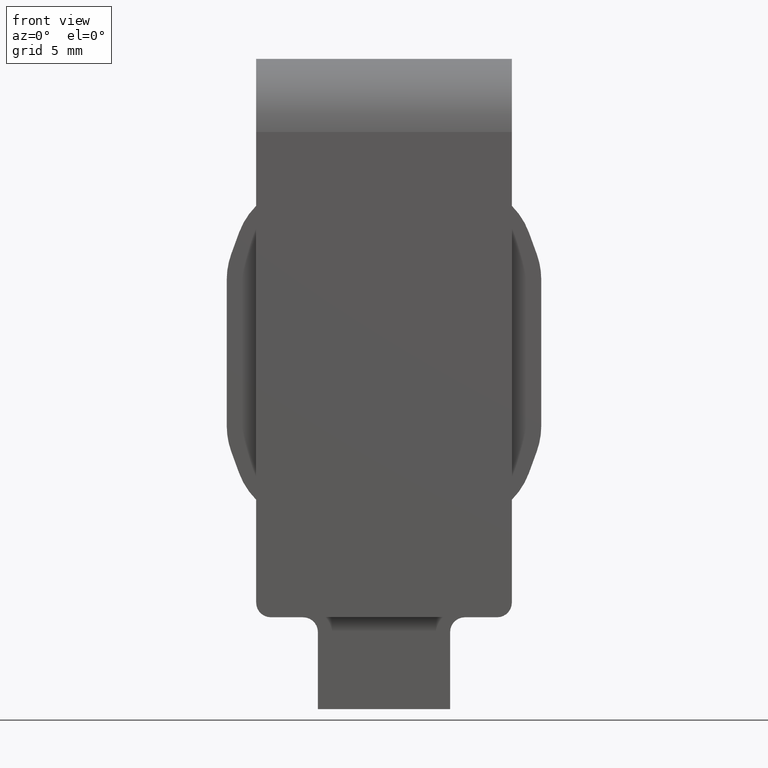
[diagram: clean part render]
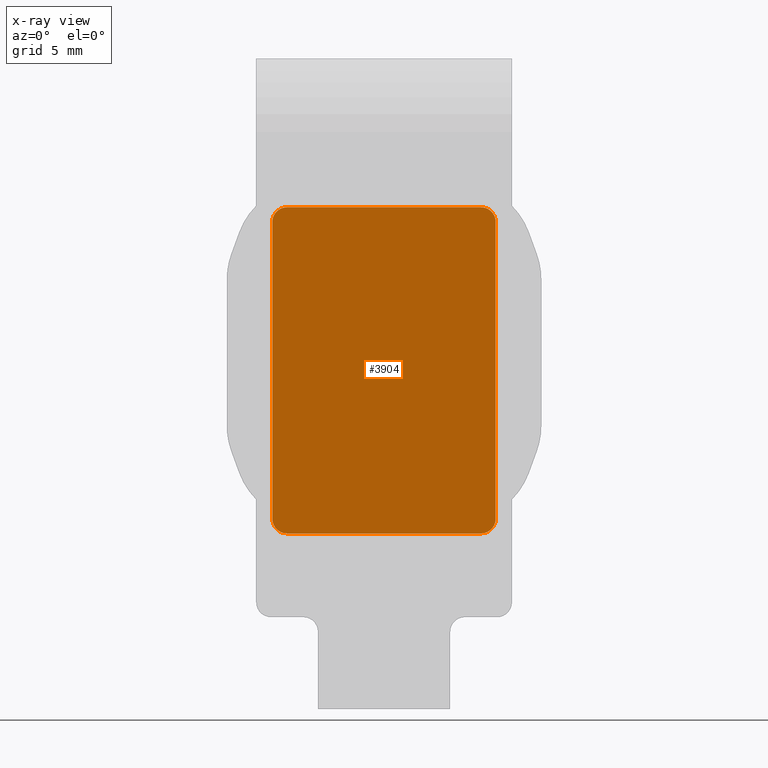
[diagram: x-ray — body ghosted, one internal face saturated and labeled with its STEP entity id]
A machine part, front view, then the same camera in x-ray: the body is ghosted and one INTERNAL B-rep face — a face not visible from any outside direction — is saturated and labeled: STEP entity #3904.
In plain terms, the highlighted planar face has unit normal (-0, -1, -0).
Its self-contained STEP definition (entity closure, byte-faithful):
#135 = LINE ( 'NONE', #9154, #2910 ) ;
#536 = EDGE_CURVE ( 'NONE', #4907, #2360, #135, .T. ) ;
#702 = CIRCLE ( 'NONE', #12498, 1.000000000000000888 ) ;
#859 = CIRCLE ( 'NONE', #11287, 1.000000000000000000 ) ;
#943 = CARTESIAN_POINT ( 'NONE',  ( -6.599999999999998757, 3.999999999999999112, 6.700000000000004619 ) ) ;
#1363 = CARTESIAN_POINT ( 'NONE',  ( -6.599999999999997868, 3.999999999999994671, 27.90000000000000213 ) ) ;
#1574 = VERTEX_POINT ( 'NONE', #7740 ) ;
#1625 = VERTEX_POINT ( 'NONE', #14100 ) ;
#1814 = LINE ( 'NONE', #5326, #8529 ) ;
#1901 = ORIENTED_EDGE ( 'NONE', *, *, #4946, .T. ) ;
#2193 = CARTESIAN_POINT ( 'NONE',  ( -6.599999999999999645, 3.999999999999998224, 5.700000000000002842 ) ) ;
#2224 = ORIENTED_EDGE ( 'NONE', *, *, #14777, .T. ) ;
#2360 = VERTEX_POINT ( 'NONE', #9300 ) ;
#2758 = CARTESIAN_POINT ( 'NONE',  ( 1.605226994010520279E-31, 4.000000000000000000, 6.286915214398285185E-16 ) ) ;
#2843 = CIRCLE ( 'NONE', #15583, 1.000000000000000888 ) ;
#2910 = VECTOR ( 'NONE', #10428, 1000.000000000000000 ) ;
#3344 = CARTESIAN_POINT ( 'NONE',  ( 6.600000000000001421, 3.999999999999999112, 6.700000000000001066 ) ) ;
#3355 = DIRECTION ( 'NONE',  ( 2.344220913482172149E-16, -1.562813942321448017E-16, 1.000000000000000000 ) ) ;
#3647 = FACE_OUTER_BOUND ( 'NONE', #8334, .T. ) ;
#3904 = ADVANCED_FACE ( 'NONE', ( #3647 ), #12768, .F. ) ;
#3923 = CARTESIAN_POINT ( 'NONE',  ( -7.599999999999998757, 3.999999999999994671, 26.89999999999999858 ) ) ;
#4317 = DIRECTION ( 'NONE',  ( 3.567171097801156054E-32, 1.000000000000000000, 1.562813942321448017E-16 ) ) ;
#4629 = VERTEX_POINT ( 'NONE', #8957 ) ;
#4907 = VERTEX_POINT ( 'NONE', #2193 ) ;
#4946 = EDGE_CURVE ( 'NONE', #4907, #1625, #15091, .T. ) ;
#5043 = VECTOR ( 'NONE', #3355, 1000.000000000000000 ) ;
#5326 = CARTESIAN_POINT ( 'NONE',  ( -7.599999999999998757, 3.999999999999994671, 27.90000000000000213 ) ) ;
#5335 = CARTESIAN_POINT ( 'NONE',  ( 6.600000000000005862, 3.999999999999995559, 26.89999999999999858 ) ) ;
#5881 = DIRECTION ( 'NONE',  ( 1.040834085586084257E-14, 0.000000000000000000, -1.000000000000000000 ) ) ;
#6185 = VECTOR ( 'NONE', #11363, 1000.000000000000000 ) ;
#6974 = EDGE_CURVE ( 'NONE', #4629, #2360, #859, .T. ) ;
#7080 = DIRECTION ( 'NONE',  ( 3.567171097801156054E-32, 1.000000000000000000, 1.562813942321448017E-16 ) ) ;
#7383 = VERTEX_POINT ( 'NONE', #11828 ) ;
#7564 = ORIENTED_EDGE ( 'NONE', *, *, #536, .F. ) ;
#7740 = CARTESIAN_POINT ( 'NONE',  ( 6.600000000000005862, 3.999999999999994671, 27.89999999999999858 ) ) ;
#7780 = AXIS2_PLACEMENT_3D ( 'NONE', #2758, #15360, #9052 ) ;
#7873 = DIRECTION ( 'NONE',  ( 0.000000000000000000, 0.000000000000000000, -1.000000000000000000 ) ) ;
#8008 = LINE ( 'NONE', #8432, #5043 ) ;
#8096 = EDGE_CURVE ( 'NONE', #14458, #1625, #1814, .T. ) ;
#8176 = DIRECTION ( 'NONE',  ( 0.000000000000000000, 0.000000000000000000, -1.000000000000000000 ) ) ;
#8274 = ORIENTED_EDGE ( 'NONE', *, *, #6974, .T. ) ;
#8334 = EDGE_LOOP ( 'NONE', ( #15127, #8274, #7564, #1901, #10981, #2224, #12769, #9279 ) ) ;
#8432 = CARTESIAN_POINT ( 'NONE',  ( 7.600000000000000533, 3.999999999999998224, 5.700000000000001066 ) ) ;
#8498 = CARTESIAN_POINT ( 'NONE',  ( 7.600000000000005862, 3.999999999999994671, 27.89999999999999858 ) ) ;
#8529 = VECTOR ( 'NONE', #15494, 1000.000000000000000 ) ;
#8702 = DIRECTION ( 'NONE',  ( -8.673617379884035472E-16, 0.000000000000000000, -1.000000000000000000 ) ) ;
#8957 = CARTESIAN_POINT ( 'NONE',  ( 7.600000000000000533, 3.999999999999998224, 6.700000000000001066 ) ) ;
#9052 = DIRECTION ( 'NONE',  ( 0.000000000000000000, 1.562813942321448017E-16, -1.000000000000000000 ) ) ;
#9059 = AXIS2_PLACEMENT_3D ( 'NONE', #943, #7080, #8702 ) ;
#9154 = CARTESIAN_POINT ( 'NONE',  ( -7.599999999999998757, 3.999999999999998224, 5.700000000000002842 ) ) ;
#9279 = ORIENTED_EDGE ( 'NONE', *, *, #15223, .T. ) ;
#9300 = CARTESIAN_POINT ( 'NONE',  ( 6.599999999999997868, 3.999999999999998224, 5.700000000000001066 ) ) ;
#9757 = LINE ( 'NONE', #8498, #6185 ) ;
#10428 = DIRECTION ( 'NONE',  ( 1.000000000000000000, 0.000000000000000000, -1.141265444721583757E-16 ) ) ;
#10766 = CARTESIAN_POINT ( 'NONE',  ( -6.599999999999997868, 3.999999999999995559, 26.89999999999999858 ) ) ;
#10981 = ORIENTED_EDGE ( 'NONE', *, *, #8096, .F. ) ;
#11064 = DIRECTION ( 'NONE',  ( 3.567171097801156054E-32, 1.000000000000000000, 1.562813942321448017E-16 ) ) ;
#11287 = AXIS2_PLACEMENT_3D ( 'NONE', #3344, #11064, #5881 ) ;
#11363 = DIRECTION ( 'NONE',  ( -1.000000000000000000, 0.000000000000000000, 2.282530889443166529E-16 ) ) ;
#11828 = CARTESIAN_POINT ( 'NONE',  ( 7.600000000000005862, 3.999999999999994671, 26.89999999999999858 ) ) ;
#12498 = AXIS2_PLACEMENT_3D ( 'NONE', #10766, #4317, #8176 ) ;
#12548 = VERTEX_POINT ( 'NONE', #1363 ) ;
#12768 = PLANE ( 'NONE',  #7780 ) ;
#12769 = ORIENTED_EDGE ( 'NONE', *, *, #16361, .F. ) ;
#13937 = EDGE_CURVE ( 'NONE', #4629, #7383, #8008, .T. ) ;
#14100 = CARTESIAN_POINT ( 'NONE',  ( -7.599999999999998757, 3.999999999999998224, 6.700000000000004619 ) ) ;
#14183 = DIRECTION ( 'NONE',  ( 3.567171097801156054E-32, 1.000000000000000000, 1.562813942321448017E-16 ) ) ;
#14458 = VERTEX_POINT ( 'NONE', #3923 ) ;
#14777 = EDGE_CURVE ( 'NONE', #14458, #12548, #702, .T. ) ;
#15091 = CIRCLE ( 'NONE', #9059, 1.000000000000000000 ) ;
#15127 = ORIENTED_EDGE ( 'NONE', *, *, #13937, .F. ) ;
#15223 = EDGE_CURVE ( 'NONE', #1574, #7383, #2843, .T. ) ;
#15360 = DIRECTION ( 'NONE',  ( -3.567171097801156054E-32, -1.000000000000000000, -1.562813942321448017E-16 ) ) ;
#15494 = DIRECTION ( 'NONE',  ( 0.000000000000000000, 1.562813942321448017E-16, -1.000000000000000000 ) ) ;
#15583 = AXIS2_PLACEMENT_3D ( 'NONE', #5335, #14183, #7873 ) ;
#16361 = EDGE_CURVE ( 'NONE', #1574, #12548, #9757, .T. ) ;